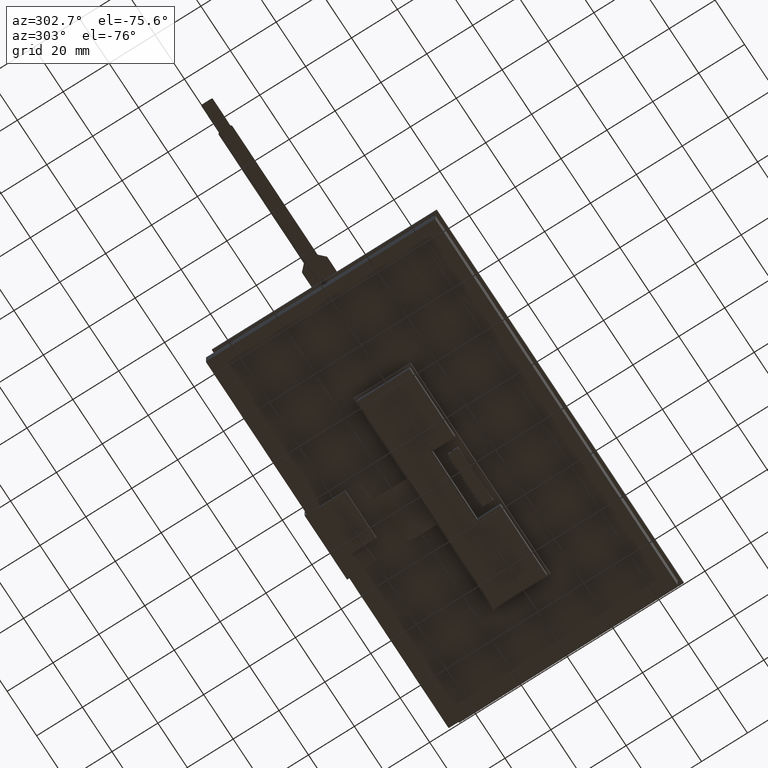
[diagram: clean part render]
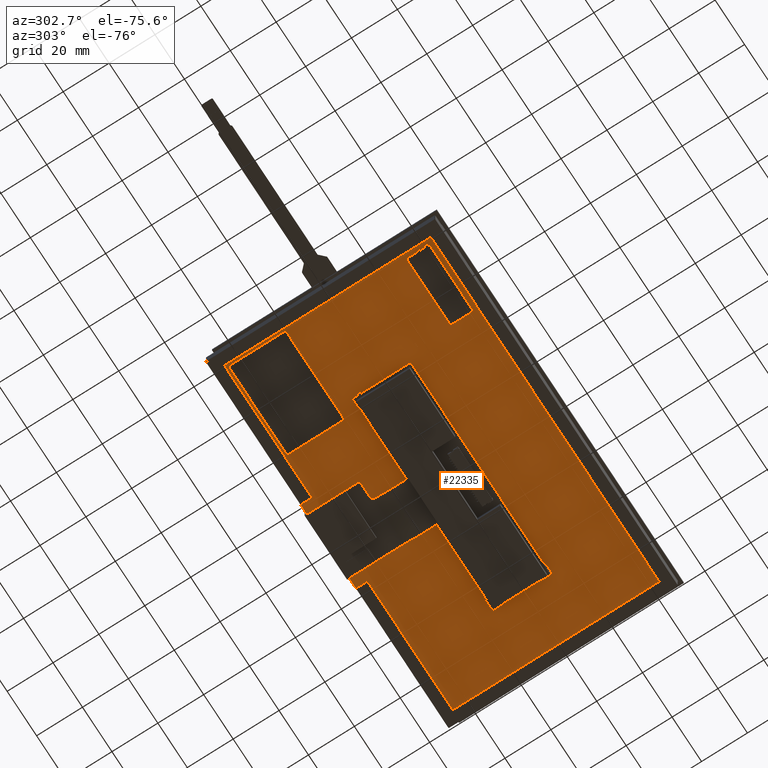
[diagram: same view with one face highlighted and labeled with its STEP entity id]
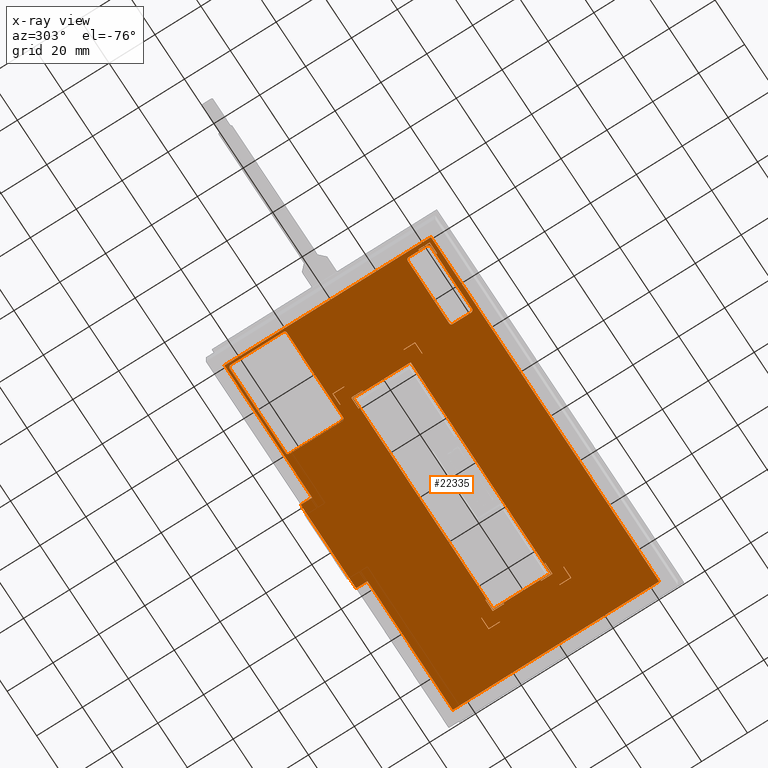
[diagram: x-ray of the same camera — body ghosted, the highlighted face saturated]
A machine part, auxiliary view. The second image highlights one B-rep face of the part: STEP entity #22335.
The next image is the same camera in x-ray: the body ghosted, the highlighted face saturated — about 0% of this face is hidden behind the body in this view.
In plain terms, the highlighted planar face has unit normal (0, -0, -1).
Its self-contained STEP definition (entity closure, byte-faithful):
#115=CIRCLE('',#22459,1.);
#119=CIRCLE('',#22466,1.);
#120=CIRCLE('',#22468,1.);
#121=CIRCLE('',#22471,1.);
#144=CIRCLE('',#22568,1.);
#146=CIRCLE('',#22572,1.00000000000003);
#148=CIRCLE('',#22576,0.999999999999999);
#150=CIRCLE('',#22580,0.999999999999976);
#771=FACE_BOUND('',#3068,.T.);
#772=FACE_BOUND('',#3069,.T.);
#773=FACE_BOUND('',#3070,.T.);
#774=FACE_BOUND('',#3071,.T.);
#775=FACE_BOUND('',#3072,.T.);
#776=FACE_BOUND('',#3073,.T.);
#777=FACE_BOUND('',#3074,.T.);
#778=FACE_BOUND('',#3075,.T.);
#779=FACE_BOUND('',#3076,.T.);
#780=FACE_BOUND('',#3077,.T.);
#781=FACE_BOUND('',#3078,.T.);
#1855=FACE_OUTER_BOUND('',#3067,.T.);
#3067=EDGE_LOOP('',(#19982,#19983,#19984,#19985,#19986,#19987,#19988,#19989));
#3068=EDGE_LOOP('',(#19990,#19991,#19992,#19993,#19994,#19995,#19996,#19997));
#3069=EDGE_LOOP('',(#19998,#19999,#20000,#20001,#20002,#20003,#20004,#20005));
#3070=EDGE_LOOP('',(#20006,#20007,#20008,#20009));
#3071=EDGE_LOOP('',(#20010,#20011,#20012,#20013,#20014,#20015));
#3072=EDGE_LOOP('',(#20016,#20017,#20018,#20019,#20020,#20021));
#3073=EDGE_LOOP('',(#20022,#20023,#20024,#20025,#20026,#20027));
#3074=EDGE_LOOP('',(#20028,#20029,#20030,#20031,#20032,#20033));
#3075=EDGE_LOOP('',(#20034,#20035,#20036,#20037,#20038,#20039));
#3076=EDGE_LOOP('',(#20040,#20041,#20042,#20043,#20044,#20045));
#3077=EDGE_LOOP('',(#20046,#20047,#20048,#20049,#20050,#20051));
#3078=EDGE_LOOP('',(#20052,#20053,#20054,#20055,#20056,#20057));
#3231=LINE('',#30161,#5975);
#3237=LINE('',#30176,#5981);
#3239=LINE('',#30182,#5983);
#3240=LINE('',#30184,#5984);
#3420=LINE('',#30600,#6164);
#3424=LINE('',#30612,#6168);
#3428=LINE('',#30624,#6172);
#3432=LINE('',#30635,#6176);
#5700=LINE('',#36011,#8444);
#5703=LINE('',#36016,#8447);
#5705=LINE('',#36020,#8449);
#5707=LINE('',#36023,#8451);
#5708=LINE('',#36027,#8452);
#5712=LINE('',#36035,#8456);
#5715=LINE('',#36041,#8459);
#5718=LINE('',#36047,#8462);
#5721=LINE('',#36053,#8465);
#5724=LINE('',#36059,#8468);
#5727=LINE('',#36065,#8471);
#5734=LINE('',#36083,#8478);
#5735=LINE('',#36086,#8479);
#5736=LINE('',#36088,#8480);
#5737=LINE('',#36090,#8481);
#5738=LINE('',#36092,#8482);
#5739=LINE('',#36094,#8483);
#5740=LINE('',#36095,#8484);
#5741=LINE('',#36098,#8485);
#5742=LINE('',#36100,#8486);
#5743=LINE('',#36102,#8487);
#5744=LINE('',#36104,#8488);
#5745=LINE('',#36106,#8489);
#5746=LINE('',#36107,#8490);
#5747=LINE('',#36110,#8491);
#5748=LINE('',#36112,#8492);
#5749=LINE('',#36114,#8493);
#5750=LINE('',#36116,#8494);
#5751=LINE('',#36118,#8495);
#5752=LINE('',#36119,#8496);
#5753=LINE('',#36122,#8497);
#5754=LINE('',#36124,#8498);
#5755=LINE('',#36126,#8499);
#5756=LINE('',#36128,#8500);
#5757=LINE('',#36130,#8501);
#5758=LINE('',#36131,#8502);
#5759=LINE('',#36134,#8503);
#5760=LINE('',#36136,#8504);
#5761=LINE('',#36138,#8505);
#5762=LINE('',#36140,#8506);
#5763=LINE('',#36142,#8507);
#5764=LINE('',#36143,#8508);
#5765=LINE('',#36146,#8509);
#5766=LINE('',#36148,#8510);
#5767=LINE('',#36150,#8511);
#5768=LINE('',#36152,#8512);
#5769=LINE('',#36154,#8513);
#5770=LINE('',#36155,#8514);
#5771=LINE('',#36158,#8515);
#5772=LINE('',#36160,#8516);
#5773=LINE('',#36162,#8517);
#5774=LINE('',#36164,#8518);
#5775=LINE('',#36166,#8519);
#5776=LINE('',#36167,#8520);
#5777=LINE('',#36170,#8521);
#5778=LINE('',#36172,#8522);
#5779=LINE('',#36174,#8523);
#5780=LINE('',#36176,#8524);
#5781=LINE('',#36178,#8525);
#5782=LINE('',#36179,#8526);
#5975=VECTOR('',#24194,10.);
#5981=VECTOR('',#24210,10.);
#5983=VECTOR('',#24218,10.);
#5984=VECTOR('',#24221,10.);
#6164=VECTOR('',#24595,10.);
#6168=VECTOR('',#24607,10.);
#6172=VECTOR('',#24619,10.);
#6176=VECTOR('',#24631,10.);
#8444=VECTOR('',#29615,10.);
#8447=VECTOR('',#29620,10.);
#8449=VECTOR('',#29624,10.);
#8451=VECTOR('',#29628,10.);
#8452=VECTOR('',#29631,10.);
#8456=VECTOR('',#29637,10.);
#8459=VECTOR('',#29642,10.);
#8462=VECTOR('',#29647,10.);
#8465=VECTOR('',#29652,10.);
#8468=VECTOR('',#29657,10.);
#8471=VECTOR('',#29662,10.);
#8478=VECTOR('',#29679,1000.);
#8479=VECTOR('',#29680,1000.);
#8480=VECTOR('',#29681,1000.);
#8481=VECTOR('',#29682,1000.);
#8482=VECTOR('',#29683,1000.);
#8483=VECTOR('',#29684,1000.);
#8484=VECTOR('',#29685,1000.);
#8485=VECTOR('',#29686,1000.);
#8486=VECTOR('',#29687,1000.);
#8487=VECTOR('',#29688,1000.);
#8488=VECTOR('',#29689,1000.);
#8489=VECTOR('',#29690,1000.);
#8490=VECTOR('',#29691,1000.);
#8491=VECTOR('',#29692,1000.);
#8492=VECTOR('',#29693,1000.);
#8493=VECTOR('',#29694,1000.);
#8494=VECTOR('',#29695,1000.);
#8495=VECTOR('',#29696,1000.);
#8496=VECTOR('',#29697,1000.);
#8497=VECTOR('',#29698,1000.);
#8498=VECTOR('',#29699,1000.);
#8499=VECTOR('',#29700,1000.);
#8500=VECTOR('',#29701,1000.);
#8501=VECTOR('',#29702,1000.);
#8502=VECTOR('',#29703,1000.);
#8503=VECTOR('',#29704,1000.);
#8504=VECTOR('',#29705,1000.);
#8505=VECTOR('',#29706,1000.);
#8506=VECTOR('',#29707,1000.);
#8507=VECTOR('',#29708,1000.);
#8508=VECTOR('',#29709,1000.);
#8509=VECTOR('',#29710,1000.);
#8510=VECTOR('',#29711,1000.);
#8511=VECTOR('',#29712,1000.);
#8512=VECTOR('',#29713,1000.);
#8513=VECTOR('',#29714,1000.);
#8514=VECTOR('',#29715,1000.);
#8515=VECTOR('',#29716,1000.);
#8516=VECTOR('',#29717,1000.);
#8517=VECTOR('',#29718,1000.);
#8518=VECTOR('',#29719,1000.);
#8519=VECTOR('',#29720,1000.);
#8520=VECTOR('',#29721,1000.);
#8521=VECTOR('',#29722,1000.);
#8522=VECTOR('',#29723,1000.);
#8523=VECTOR('',#29724,1000.);
#8524=VECTOR('',#29725,1000.);
#8525=VECTOR('',#29726,1000.);
#8526=VECTOR('',#29727,1000.);
#8689=VERTEX_POINT('',#30140);
#8690=VERTEX_POINT('',#30142);
#8697=VERTEX_POINT('',#30160);
#8698=VERTEX_POINT('',#30164);
#8699=VERTEX_POINT('',#30168);
#8700=VERTEX_POINT('',#30170);
#8701=VERTEX_POINT('',#30174);
#8702=VERTEX_POINT('',#30178);
#8837=VERTEX_POINT('',#30590);
#8838=VERTEX_POINT('',#30591);
#8841=VERTEX_POINT('',#30599);
#8843=VERTEX_POINT('',#30605);
#8845=VERTEX_POINT('',#30611);
#8847=VERTEX_POINT('',#30617);
#8849=VERTEX_POINT('',#30623);
#8851=VERTEX_POINT('',#30629);
#10601=VERTEX_POINT('',#36009);
#10602=VERTEX_POINT('',#36010);
#10603=VERTEX_POINT('',#36015);
#10604=VERTEX_POINT('',#36019);
#10605=VERTEX_POINT('',#36025);
#10606=VERTEX_POINT('',#36026);
#10609=VERTEX_POINT('',#36034);
#10611=VERTEX_POINT('',#36040);
#10613=VERTEX_POINT('',#36046);
#10615=VERTEX_POINT('',#36052);
#10617=VERTEX_POINT('',#36058);
#10619=VERTEX_POINT('',#36064);
#10626=VERTEX_POINT('',#36084);
#10627=VERTEX_POINT('',#36085);
#10628=VERTEX_POINT('',#36087);
#10629=VERTEX_POINT('',#36089);
#10630=VERTEX_POINT('',#36091);
#10631=VERTEX_POINT('',#36093);
#10632=VERTEX_POINT('',#36096);
#10633=VERTEX_POINT('',#36097);
#10634=VERTEX_POINT('',#36099);
#10635=VERTEX_POINT('',#36101);
#10636=VERTEX_POINT('',#36103);
#10637=VERTEX_POINT('',#36105);
#10638=VERTEX_POINT('',#36108);
#10639=VERTEX_POINT('',#36109);
#10640=VERTEX_POINT('',#36111);
#10641=VERTEX_POINT('',#36113);
#10642=VERTEX_POINT('',#36115);
#10643=VERTEX_POINT('',#36117);
#10644=VERTEX_POINT('',#36120);
#10645=VERTEX_POINT('',#36121);
#10646=VERTEX_POINT('',#36123);
#10647=VERTEX_POINT('',#36125);
#10648=VERTEX_POINT('',#36127);
#10649=VERTEX_POINT('',#36129);
#10650=VERTEX_POINT('',#36132);
#10651=VERTEX_POINT('',#36133);
#10652=VERTEX_POINT('',#36135);
#10653=VERTEX_POINT('',#36137);
#10654=VERTEX_POINT('',#36139);
#10655=VERTEX_POINT('',#36141);
#10656=VERTEX_POINT('',#36144);
#10657=VERTEX_POINT('',#36145);
#10658=VERTEX_POINT('',#36147);
#10659=VERTEX_POINT('',#36149);
#10660=VERTEX_POINT('',#36151);
#10661=VERTEX_POINT('',#36153);
#10662=VERTEX_POINT('',#36156);
#10663=VERTEX_POINT('',#36157);
#10664=VERTEX_POINT('',#36159);
#10665=VERTEX_POINT('',#36161);
#10666=VERTEX_POINT('',#36163);
#10667=VERTEX_POINT('',#36165);
#10668=VERTEX_POINT('',#36168);
#10669=VERTEX_POINT('',#36169);
#10670=VERTEX_POINT('',#36171);
#10671=VERTEX_POINT('',#36173);
#10672=VERTEX_POINT('',#36175);
#10673=VERTEX_POINT('',#36177);
#10811=EDGE_CURVE('',#8690,#8689,#115,.T.);
#10820=EDGE_CURVE('',#8697,#8690,#3231,.T.);
#10822=EDGE_CURVE('',#8698,#8697,#119,.T.);
#10825=EDGE_CURVE('',#8700,#8699,#120,.T.);
#10828=EDGE_CURVE('',#8699,#8701,#3237,.T.);
#10830=EDGE_CURVE('',#8701,#8702,#121,.T.);
#10831=EDGE_CURVE('',#8702,#8698,#3239,.T.);
#10832=EDGE_CURVE('',#8689,#8700,#3240,.T.);
#11032=EDGE_CURVE('',#8837,#8838,#144,.T.);
#11036=EDGE_CURVE('',#8841,#8837,#3420,.T.);
#11039=EDGE_CURVE('',#8843,#8841,#146,.T.);
#11042=EDGE_CURVE('',#8845,#8843,#3424,.T.);
#11045=EDGE_CURVE('',#8847,#8845,#148,.T.);
#11048=EDGE_CURVE('',#8849,#8847,#3428,.T.);
#11051=EDGE_CURVE('',#8851,#8849,#150,.T.);
#11054=EDGE_CURVE('',#8838,#8851,#3432,.T.);
#13740=EDGE_CURVE('',#10601,#10602,#5700,.T.);
#13743=EDGE_CURVE('',#10603,#10601,#5703,.T.);
#13745=EDGE_CURVE('',#10604,#10603,#5705,.T.);
#13747=EDGE_CURVE('',#10602,#10604,#5707,.T.);
#13748=EDGE_CURVE('',#10605,#10606,#5708,.T.);
#13752=EDGE_CURVE('',#10606,#10609,#5712,.T.);
#13755=EDGE_CURVE('',#10609,#10611,#5715,.T.);
#13758=EDGE_CURVE('',#10611,#10613,#5718,.T.);
#13761=EDGE_CURVE('',#10613,#10615,#5721,.T.);
#13764=EDGE_CURVE('',#10615,#10617,#5724,.T.);
#13767=EDGE_CURVE('',#10617,#10619,#5727,.T.);
#13777=EDGE_CURVE('',#10605,#10619,#5734,.T.);
#13778=EDGE_CURVE('',#10626,#10627,#5735,.T.);
#13779=EDGE_CURVE('',#10628,#10626,#5736,.T.);
#13780=EDGE_CURVE('',#10629,#10628,#5737,.T.);
#13781=EDGE_CURVE('',#10630,#10629,#5738,.T.);
#13782=EDGE_CURVE('',#10631,#10630,#5739,.T.);
#13783=EDGE_CURVE('',#10627,#10631,#5740,.T.);
#13784=EDGE_CURVE('',#10632,#10633,#5741,.T.);
#13785=EDGE_CURVE('',#10634,#10632,#5742,.T.);
#13786=EDGE_CURVE('',#10635,#10634,#5743,.T.);
#13787=EDGE_CURVE('',#10636,#10635,#5744,.T.);
#13788=EDGE_CURVE('',#10637,#10636,#5745,.T.);
#13789=EDGE_CURVE('',#10633,#10637,#5746,.T.);
#13790=EDGE_CURVE('',#10638,#10639,#5747,.T.);
#13791=EDGE_CURVE('',#10640,#10638,#5748,.T.);
#13792=EDGE_CURVE('',#10641,#10640,#5749,.T.);
#13793=EDGE_CURVE('',#10642,#10641,#5750,.T.);
#13794=EDGE_CURVE('',#10643,#10642,#5751,.T.);
#13795=EDGE_CURVE('',#10639,#10643,#5752,.T.);
#13796=EDGE_CURVE('',#10644,#10645,#5753,.T.);
#13797=EDGE_CURVE('',#10646,#10644,#5754,.T.);
#13798=EDGE_CURVE('',#10647,#10646,#5755,.T.);
#13799=EDGE_CURVE('',#10648,#10647,#5756,.T.);
#13800=EDGE_CURVE('',#10649,#10648,#5757,.T.);
#13801=EDGE_CURVE('',#10645,#10649,#5758,.T.);
#13802=EDGE_CURVE('',#10650,#10651,#5759,.T.);
#13803=EDGE_CURVE('',#10652,#10650,#5760,.T.);
#13804=EDGE_CURVE('',#10653,#10652,#5761,.T.);
#13805=EDGE_CURVE('',#10654,#10653,#5762,.T.);
#13806=EDGE_CURVE('',#10655,#10654,#5763,.T.);
#13807=EDGE_CURVE('',#10651,#10655,#5764,.T.);
#13808=EDGE_CURVE('',#10656,#10657,#5765,.T.);
#13809=EDGE_CURVE('',#10658,#10656,#5766,.T.);
#13810=EDGE_CURVE('',#10659,#10658,#5767,.T.);
#13811=EDGE_CURVE('',#10660,#10659,#5768,.T.);
#13812=EDGE_CURVE('',#10661,#10660,#5769,.T.);
#13813=EDGE_CURVE('',#10657,#10661,#5770,.T.);
#13814=EDGE_CURVE('',#10662,#10663,#5771,.T.);
#13815=EDGE_CURVE('',#10664,#10662,#5772,.T.);
#13816=EDGE_CURVE('',#10665,#10664,#5773,.T.);
#13817=EDGE_CURVE('',#10666,#10665,#5774,.T.);
#13818=EDGE_CURVE('',#10667,#10666,#5775,.T.);
#13819=EDGE_CURVE('',#10663,#10667,#5776,.T.);
#13820=EDGE_CURVE('',#10668,#10669,#5777,.T.);
#13821=EDGE_CURVE('',#10670,#10668,#5778,.T.);
#13822=EDGE_CURVE('',#10671,#10670,#5779,.T.);
#13823=EDGE_CURVE('',#10672,#10671,#5780,.T.);
#13824=EDGE_CURVE('',#10673,#10672,#5781,.T.);
#13825=EDGE_CURVE('',#10669,#10673,#5782,.T.);
#19982=ORIENTED_EDGE('',*,*,#13748,.T.);
#19983=ORIENTED_EDGE('',*,*,#13752,.T.);
#19984=ORIENTED_EDGE('',*,*,#13755,.T.);
#19985=ORIENTED_EDGE('',*,*,#13758,.T.);
#19986=ORIENTED_EDGE('',*,*,#13761,.T.);
#19987=ORIENTED_EDGE('',*,*,#13764,.T.);
#19988=ORIENTED_EDGE('',*,*,#13767,.T.);
#19989=ORIENTED_EDGE('',*,*,#13777,.F.);
#19990=ORIENTED_EDGE('',*,*,#10825,.T.);
#19991=ORIENTED_EDGE('',*,*,#10828,.T.);
#19992=ORIENTED_EDGE('',*,*,#10830,.T.);
#19993=ORIENTED_EDGE('',*,*,#10831,.T.);
#19994=ORIENTED_EDGE('',*,*,#10822,.T.);
#19995=ORIENTED_EDGE('',*,*,#10820,.T.);
#19996=ORIENTED_EDGE('',*,*,#10811,.T.);
#19997=ORIENTED_EDGE('',*,*,#10832,.T.);
#19998=ORIENTED_EDGE('',*,*,#11032,.T.);
#19999=ORIENTED_EDGE('',*,*,#11054,.T.);
#20000=ORIENTED_EDGE('',*,*,#11051,.T.);
#20001=ORIENTED_EDGE('',*,*,#11048,.T.);
#20002=ORIENTED_EDGE('',*,*,#11045,.T.);
#20003=ORIENTED_EDGE('',*,*,#11042,.T.);
#20004=ORIENTED_EDGE('',*,*,#11039,.T.);
#20005=ORIENTED_EDGE('',*,*,#11036,.T.);
#20006=ORIENTED_EDGE('',*,*,#13740,.T.);
#20007=ORIENTED_EDGE('',*,*,#13747,.T.);
#20008=ORIENTED_EDGE('',*,*,#13745,.T.);
#20009=ORIENTED_EDGE('',*,*,#13743,.T.);
#20010=ORIENTED_EDGE('',*,*,#13778,.F.);
#20011=ORIENTED_EDGE('',*,*,#13779,.F.);
#20012=ORIENTED_EDGE('',*,*,#13780,.F.);
#20013=ORIENTED_EDGE('',*,*,#13781,.F.);
#20014=ORIENTED_EDGE('',*,*,#13782,.F.);
#20015=ORIENTED_EDGE('',*,*,#13783,.F.);
#20016=ORIENTED_EDGE('',*,*,#13784,.F.);
#20017=ORIENTED_EDGE('',*,*,#13785,.F.);
#20018=ORIENTED_EDGE('',*,*,#13786,.F.);
#20019=ORIENTED_EDGE('',*,*,#13787,.F.);
#20020=ORIENTED_EDGE('',*,*,#13788,.F.);
#20021=ORIENTED_EDGE('',*,*,#13789,.F.);
#20022=ORIENTED_EDGE('',*,*,#13790,.F.);
#20023=ORIENTED_EDGE('',*,*,#13791,.F.);
#20024=ORIENTED_EDGE('',*,*,#13792,.F.);
#20025=ORIENTED_EDGE('',*,*,#13793,.F.);
#20026=ORIENTED_EDGE('',*,*,#13794,.F.);
#20027=ORIENTED_EDGE('',*,*,#13795,.F.);
#20028=ORIENTED_EDGE('',*,*,#13796,.F.);
#20029=ORIENTED_EDGE('',*,*,#13797,.F.);
#20030=ORIENTED_EDGE('',*,*,#13798,.F.);
#20031=ORIENTED_EDGE('',*,*,#13799,.F.);
#20032=ORIENTED_EDGE('',*,*,#13800,.F.);
#20033=ORIENTED_EDGE('',*,*,#13801,.F.);
#20034=ORIENTED_EDGE('',*,*,#13802,.F.);
#20035=ORIENTED_EDGE('',*,*,#13803,.F.);
#20036=ORIENTED_EDGE('',*,*,#13804,.F.);
#20037=ORIENTED_EDGE('',*,*,#13805,.F.);
#20038=ORIENTED_EDGE('',*,*,#13806,.F.);
#20039=ORIENTED_EDGE('',*,*,#13807,.F.);
#20040=ORIENTED_EDGE('',*,*,#13808,.F.);
#20041=ORIENTED_EDGE('',*,*,#13809,.F.);
#20042=ORIENTED_EDGE('',*,*,#13810,.F.);
#20043=ORIENTED_EDGE('',*,*,#13811,.F.);
#20044=ORIENTED_EDGE('',*,*,#13812,.F.);
#20045=ORIENTED_EDGE('',*,*,#13813,.F.);
#20046=ORIENTED_EDGE('',*,*,#13814,.F.);
#20047=ORIENTED_EDGE('',*,*,#13815,.F.);
#20048=ORIENTED_EDGE('',*,*,#13816,.F.);
#20049=ORIENTED_EDGE('',*,*,#13817,.F.);
#20050=ORIENTED_EDGE('',*,*,#13818,.F.);
#20051=ORIENTED_EDGE('',*,*,#13819,.F.);
#20052=ORIENTED_EDGE('',*,*,#13820,.F.);
#20053=ORIENTED_EDGE('',*,*,#13821,.F.);
#20054=ORIENTED_EDGE('',*,*,#13822,.F.);
#20055=ORIENTED_EDGE('',*,*,#13823,.F.);
#20056=ORIENTED_EDGE('',*,*,#13824,.F.);
#20057=ORIENTED_EDGE('',*,*,#13825,.F.);
#21202=PLANE('',#23955);
#22335=ADVANCED_FACE('',(#1855,#771,#772,#773,#774,#775,#776,#777,#778,
#779,#780,#781),#21202,.T.);
#22459=AXIS2_PLACEMENT_3D('',#30143,#24177,#24178);
#22466=AXIS2_PLACEMENT_3D('',#30165,#24198,#24199);
#22468=AXIS2_PLACEMENT_3D('',#30171,#24204,#24205);
#22471=AXIS2_PLACEMENT_3D('',#30180,#24214,#24215);
#22568=AXIS2_PLACEMENT_3D('',#30592,#24587,#24588);
#22572=AXIS2_PLACEMENT_3D('',#30606,#24600,#24601);
#22576=AXIS2_PLACEMENT_3D('',#30618,#24612,#24613);
#22580=AXIS2_PLACEMENT_3D('',#30630,#24624,#24625);
#23955=AXIS2_PLACEMENT_3D('',#36082,#29677,#29678);
#24177=DIRECTION('center_axis',(0.,2.46519032881566E-32,1.));
#24178=DIRECTION('ref_axis',(-0.707106781186548,-0.707106781186547,1.34402472327242E-32));
#24194=DIRECTION('',(1.33226762955019E-16,-1.,2.46519032881566E-32));
#24198=DIRECTION('center_axis',(0.,2.46519032881566E-32,1.));
#24199=DIRECTION('ref_axis',(-0.707106781186547,0.707106781186548,-2.14228087356968E-32));
#24204=DIRECTION('center_axis',(0.,2.46519032881566E-32,1.));
#24205=DIRECTION('ref_axis',(0.707106781186549,-0.707106781186546,2.14228087356968E-32));
#24210=DIRECTION('',(4.88498130835069E-16,1.,-2.46519032881566E-32));
#24214=DIRECTION('center_axis',(0.,2.46519032881566E-32,1.));
#24215=DIRECTION('ref_axis',(0.707106781186548,0.707106781186547,-1.34402472327242E-32));
#24218=DIRECTION('',(-1.,0.,0.));
#24221=DIRECTION('',(1.,-2.22044604925031E-16,5.47382212626882E-48));
#24587=DIRECTION('center_axis',(0.,2.46519032881566E-32,1.));
#24588=DIRECTION('ref_axis',(-1.,9.09895546683146E-48,-2.24306570191573E-79));
#24595=DIRECTION('',(-9.09895546683146E-48,-1.,2.46519032881566E-32));
#24600=DIRECTION('center_axis',(0.,2.46519032881566E-32,1.));
#24601=DIRECTION('ref_axis',(-1.,9.09895546683146E-48,-2.24306570191573E-79));
#24607=DIRECTION('',(-1.,9.09895546683146E-48,-2.24306570191573E-79));
#24612=DIRECTION('center_axis',(0.,2.46519032881566E-32,1.));
#24613=DIRECTION('ref_axis',(-1.,9.09895546683146E-48,-2.24306570191573E-79));
#24619=DIRECTION('',(9.09895546683146E-48,1.,-2.46519032881566E-32));
#24624=DIRECTION('center_axis',(0.,2.46519032881566E-32,1.));
#24625=DIRECTION('ref_axis',(-1.,9.09895546683146E-48,-2.24306570191573E-79));
#24631=DIRECTION('',(1.,-9.09895546683146E-48,2.24306570191573E-79));
#29615=DIRECTION('',(9.09895546683146E-48,1.,-2.46519032881566E-32));
#29620=DIRECTION('',(1.,-9.09895546683146E-48,2.24306570191573E-79));
#29624=DIRECTION('',(-9.09895546683146E-48,-1.,2.46519032881566E-32));
#29628=DIRECTION('',(-1.,9.09895546683146E-48,-2.24306570191573E-79));
#29631=DIRECTION('',(-9.09895546683146E-48,-1.,2.46519032881566E-32));
#29637=DIRECTION('',(1.,-9.09895546683146E-48,2.24306570191573E-79));
#29642=DIRECTION('',(-9.09895546683146E-48,-1.,2.46519032881566E-32));
#29647=DIRECTION('',(-1.,9.09895546683146E-48,-2.24306570191573E-79));
#29652=DIRECTION('',(9.09895546683146E-48,1.,-2.46519032881566E-32));
#29657=DIRECTION('',(1.,-9.09895546683146E-48,2.24306570191573E-79));
#29662=DIRECTION('',(9.09895546683146E-48,1.,-2.46519032881566E-32));
#29677=DIRECTION('center_axis',(0.,-2.46519032881566E-32,-1.));
#29678=DIRECTION('ref_axis',(1.,-9.09895546683146E-48,2.24306570191573E-79));
#29679=DIRECTION('',(-1.,9.09895546683146E-48,-2.24306570191573E-79));
#29680=DIRECTION('',(-9.09895546683146E-48,-1.,2.46519032881566E-32));
#29681=DIRECTION('',(1.,-9.09895546683146E-48,2.24306570191573E-79));
#29682=DIRECTION('',(9.09895546683146E-48,1.,-2.46519032881566E-32));
#29683=DIRECTION('',(-1.,9.09895546683146E-48,-2.24306570191573E-79));
#29684=DIRECTION('',(9.09895546683146E-48,1.,-2.46519032881566E-32));
#29685=DIRECTION('',(-1.,9.09895546683146E-48,-2.24306570191573E-79));
#29686=DIRECTION('',(-1.,9.09895546683146E-48,-2.24306570191573E-79));
#29687=DIRECTION('',(-9.09895546683146E-48,-1.,2.46519032881566E-32));
#29688=DIRECTION('',(1.,-9.09895546683146E-48,2.24306570191573E-79));
#29689=DIRECTION('',(9.09895546683146E-48,1.,-2.46519032881566E-32));
#29690=DIRECTION('',(-1.,9.09895546683146E-48,-2.24306570191573E-79));
#29691=DIRECTION('',(-9.09895546683146E-48,-1.,2.46519032881566E-32));
#29692=DIRECTION('',(-1.,9.09895546683146E-48,-2.24306570191573E-79));
#29693=DIRECTION('',(-9.09895546683146E-48,-1.,2.46519032881566E-32));
#29694=DIRECTION('',(1.,-9.09895546683146E-48,2.24306570191573E-79));
#29695=DIRECTION('',(9.09895546683146E-48,1.,-2.46519032881566E-32));
#29696=DIRECTION('',(1.,-9.09895546683146E-48,2.24306570191573E-79));
#29697=DIRECTION('',(9.09895546683146E-48,1.,-2.46519032881566E-32));
#29698=DIRECTION('',(9.09895546683146E-48,1.,-2.46519032881566E-32));
#29699=DIRECTION('',(-1.,9.09895546683146E-48,-2.24306570191573E-79));
#29700=DIRECTION('',(-9.09895546683146E-48,-1.,2.46519032881566E-32));
#29701=DIRECTION('',(1.,-9.09895546683146E-48,2.24306570191573E-79));
#29702=DIRECTION('',(-9.09895546683146E-48,-1.,2.46519032881566E-32));
#29703=DIRECTION('',(1.,-9.09895546683146E-48,2.24306570191573E-79));
#29704=DIRECTION('',(-9.09895546683146E-48,-1.,2.46519032881566E-32));
#29705=DIRECTION('',(1.,-9.09895546683146E-48,2.24306570191573E-79));
#29706=DIRECTION('',(9.09895546683146E-48,1.,-2.46519032881566E-32));
#29707=DIRECTION('',(-1.,9.09895546683146E-48,-2.24306570191573E-79));
#29708=DIRECTION('',(-9.09895546683146E-48,-1.,2.46519032881566E-32));
#29709=DIRECTION('',(1.,-9.09895546683146E-48,2.24306570191573E-79));
#29710=DIRECTION('',(-9.09895546683146E-48,-1.,2.46519032881566E-32));
#29711=DIRECTION('',(-1.,2.89120579329468E-15,-7.12737256024586E-47));
#29712=DIRECTION('',(-9.09895546683146E-48,-1.,2.46519032881566E-32));
#29713=DIRECTION('',(1.,-9.09895546683146E-48,2.24306570191573E-79));
#29714=DIRECTION('',(2.77555756156289E-15,1.,-2.46519032881566E-32));
#29715=DIRECTION('',(-1.,9.09895546683146E-48,-2.24306570191573E-79));
#29716=DIRECTION('',(9.09895546683146E-48,1.,-2.46519032881566E-32));
#29717=DIRECTION('',(-1.,9.09895546683146E-48,-2.24306570191573E-79));
#29718=DIRECTION('',(1.38777878078145E-15,-1.,2.46519032881566E-32));
#29719=DIRECTION('',(1.,-2.77555756156289E-15,6.84227765783603E-47));
#29720=DIRECTION('',(9.09895546683146E-48,1.,-2.46519032881566E-32));
#29721=DIRECTION('',(-1.,9.09895546683146E-48,-2.24306570191573E-79));
#29722=DIRECTION('',(9.09895546683146E-48,1.,-2.46519032881566E-32));
#29723=DIRECTION('',(-1.,-2.77555756156289E-15,6.84227765783603E-47));
#29724=DIRECTION('',(-1.38777878078145E-15,-1.,2.46519032881566E-32));
#29725=DIRECTION('',(1.,-9.09895546683146E-48,2.24306570191573E-79));
#29726=DIRECTION('',(9.09895546683146E-48,1.,-2.46519032881566E-32));
#29727=DIRECTION('',(1.,-9.09895546683146E-48,2.24306570191573E-79));
#30140=CARTESIAN_POINT('',(-77.0149999999792,21.3600000000001,-8.02500000000003));
#30142=CARTESIAN_POINT('',(-78.0149999999792,22.3600000000001,-8.02500000000003));
#30143=CARTESIAN_POINT('Origin',(-77.0149999999792,22.3600000000001,-8.02500000000003));
#30160=CARTESIAN_POINT('',(-78.0149999999792,45.3600000000001,-8.02500000000003));
#30161=CARTESIAN_POINT('',(-78.0149999999792,-0.474999999999958,-8.02500000000003));
#30164=CARTESIAN_POINT('',(-77.0149999999792,46.3600000000001,-8.02500000000003));
#30165=CARTESIAN_POINT('Origin',(-77.0149999999792,45.3600000000001,-8.02500000000003));
#30168=CARTESIAN_POINT('',(-38.0149999999792,22.3600000000001,-8.02500000000003));
#30170=CARTESIAN_POINT('',(-39.0149999999792,21.3600000000001,-8.02500000000003));
#30171=CARTESIAN_POINT('Origin',(-39.0149999999792,22.3600000000001,-8.02500000000003));
#30174=CARTESIAN_POINT('',(-38.0149999999792,45.3600000000001,-8.02500000000003));
#30176=CARTESIAN_POINT('',(-38.0149999999792,-6.72499999999997,-8.02500000000003));
#30178=CARTESIAN_POINT('',(-39.0149999999792,46.3600000000001,-8.02500000000003));
#30180=CARTESIAN_POINT('Origin',(-39.0149999999792,45.3600000000001,-8.02500000000003));
#30182=CARTESIAN_POINT('',(-70.8499999999896,46.3600000000001,-8.02500000000003));
#30184=CARTESIAN_POINT('',(-80.8499999999896,21.3600000000001,-8.02500000000003));
#30590=CARTESIAN_POINT('',(-77.015,-39.64,-8.02500000000003));
#30591=CARTESIAN_POINT('',(-76.015,-40.64,-8.02500000000003));
#30592=CARTESIAN_POINT('Origin',(-76.015,-39.64,-8.02500000000003));
#30599=CARTESIAN_POINT('',(-77.015,-31.64,-8.02500000000003));
#30600=CARTESIAN_POINT('',(-77.015,-43.475,-8.02500000000003));
#30605=CARTESIAN_POINT('',(-76.015,-30.64,-8.02500000000003));
#30606=CARTESIAN_POINT('Origin',(-76.015,-31.64,-8.02500000000003));
#30611=CARTESIAN_POINT('',(-48.015,-30.64,-8.02500000000003));
#30612=CARTESIAN_POINT('',(-79.85,-30.64,-8.02500000000003));
#30617=CARTESIAN_POINT('',(-47.015,-31.64,-8.02500000000003));
#30618=CARTESIAN_POINT('Origin',(-48.015,-31.64,-8.02500000000003));
#30623=CARTESIAN_POINT('',(-47.015,-39.64,-8.02500000000003));
#30624=CARTESIAN_POINT('',(-47.015,-39.475,-8.02500000000003));
#30629=CARTESIAN_POINT('',(-48.015,-40.64,-8.02500000000003));
#30630=CARTESIAN_POINT('Origin',(-48.015,-39.64,-8.02500000000003));
#30635=CARTESIAN_POINT('',(-65.85,-40.64,-8.02500000000003));
#36009=CARTESIAN_POINT('',(51.875,-10.73,-8.02500000000003));
#36010=CARTESIAN_POINT('',(51.875,14.27,-8.02500000000003));
#36011=CARTESIAN_POINT('',(51.875,-16.52,-8.02500000000003));
#36015=CARTESIAN_POINT('',(-43.125,-10.73,-8.02500000000003));
#36016=CARTESIAN_POINT('',(-15.905,-10.73,-8.02500000000003));
#36019=CARTESIAN_POINT('',(-43.125,14.27,-8.02500000000003));
#36020=CARTESIAN_POINT('',(-43.125,-16.52,-8.02500000000003));
#36023=CARTESIAN_POINT('',(-15.905,14.27,-8.02500000000003));
#36025=CARTESIAN_POINT('',(18.06,52.36,-8.02500000000003));
#36026=CARTESIAN_POINT('',(18.06,47.36,-8.02500000000003));
#36027=CARTESIAN_POINT('',(18.06,0.0249999999999995,-8.02500000000003));
#36034=CARTESIAN_POINT('',(75.9850000000209,47.36,-8.02500000000003));
#36035=CARTESIAN_POINT('',(-3.84999999998954,47.36,-8.02500000000003));
#36040=CARTESIAN_POINT('',(75.9850000000209,-42.64,-8.02500000000003));
#36041=CARTESIAN_POINT('',(75.9850000000209,-44.975,-8.02500000000003));
#36046=CARTESIAN_POINT('',(-79.0149999999791,-42.64,-8.02500000000003));
#36047=CARTESIAN_POINT('',(-81.3499999999895,-42.64,-8.02500000000003));
#36052=CARTESIAN_POINT('',(-79.0149999999791,47.36,-8.02500000000003));
#36053=CARTESIAN_POINT('',(-79.0149999999791,0.0250000000000083,-8.02500000000003));
#36058=CARTESIAN_POINT('',(-19.52,47.36,-8.02500000000003));
#36059=CARTESIAN_POINT('',(-51.6025,47.36,-8.02500000000003));
#36064=CARTESIAN_POINT('',(-19.52,52.36,-8.02500000000003));
#36065=CARTESIAN_POINT('',(-19.52,2.52500000000001,-8.02500000000003));
#36082=CARTESIAN_POINT('Origin',(-83.685,-47.31,-8.02500000000003));
#36083=CARTESIAN_POINT('',(80.655,52.36,-8.02500000000003));
#36084=CARTESIAN_POINT('',(57.375,19.77,-8.02500000000003));
#36085=CARTESIAN_POINT('',(57.375,14.77,-8.02500000000003));
#36086=CARTESIAN_POINT('',(57.375,19.77,-8.02500000000003));
#36087=CARTESIAN_POINT('',(52.375,19.77,-8.02500000000003));
#36088=CARTESIAN_POINT('',(57.375,19.77,-8.02500000000003));
#36089=CARTESIAN_POINT('',(52.375,19.57,-8.02500000000003));
#36090=CARTESIAN_POINT('',(52.375,19.77,-8.02500000000003));
#36091=CARTESIAN_POINT('',(57.175,19.57,-8.02500000000003));
#36092=CARTESIAN_POINT('',(57.175,19.57,-8.02500000000003));
#36093=CARTESIAN_POINT('',(57.175,14.77,-8.02500000000003));
#36094=CARTESIAN_POINT('',(57.175,19.57,-8.02500000000003));
#36095=CARTESIAN_POINT('',(57.375,14.77,-8.02500000000003));
#36096=CARTESIAN_POINT('',(-43.625,19.57,-8.02500000000003));
#36097=CARTESIAN_POINT('',(-48.425,19.57,-8.02500000000003));
#36098=CARTESIAN_POINT('',(-48.425,19.57,-8.02500000000003));
#36099=CARTESIAN_POINT('',(-43.625,19.77,-8.02500000000003));
#36100=CARTESIAN_POINT('',(-43.625,19.77,-8.02500000000003));
#36101=CARTESIAN_POINT('',(-48.625,19.77,-8.02500000000003));
#36102=CARTESIAN_POINT('',(-48.625,19.77,-8.02500000000003));
#36103=CARTESIAN_POINT('',(-48.625,14.77,-8.02500000000003));
#36104=CARTESIAN_POINT('',(-48.625,19.77,-8.02500000000003));
#36105=CARTESIAN_POINT('',(-48.425,14.77,-8.02500000000003));
#36106=CARTESIAN_POINT('',(-48.625,14.77,-8.02500000000003));
#36107=CARTESIAN_POINT('',(-48.425,19.57,-8.02500000000003));
#36108=CARTESIAN_POINT('',(57.375,-16.23,-8.02500000000003));
#36109=CARTESIAN_POINT('',(52.375,-16.23,-8.02500000000003));
#36110=CARTESIAN_POINT('',(57.375,-16.23,-8.02500000000003));
#36111=CARTESIAN_POINT('',(57.375,-11.23,-8.02500000000003));
#36112=CARTESIAN_POINT('',(57.375,-16.23,-8.02500000000003));
#36113=CARTESIAN_POINT('',(57.175,-11.23,-8.02500000000003));
#36114=CARTESIAN_POINT('',(57.375,-11.23,-8.02500000000003));
#36115=CARTESIAN_POINT('',(57.175,-16.03,-8.02500000000003));
#36116=CARTESIAN_POINT('',(57.175,-16.03,-8.02500000000003));
#36117=CARTESIAN_POINT('',(52.375,-16.03,-8.02500000000003));
#36118=CARTESIAN_POINT('',(57.175,-16.03,-8.02500000000003));
#36119=CARTESIAN_POINT('',(52.375,-16.23,-8.02500000000003));
#36120=CARTESIAN_POINT('',(-48.625,-16.23,-8.02500000000003));
#36121=CARTESIAN_POINT('',(-48.625,-11.23,-8.02500000000003));
#36122=CARTESIAN_POINT('',(-48.625,-16.23,-8.02500000000003));
#36123=CARTESIAN_POINT('',(-43.625,-16.23,-8.02500000000003));
#36124=CARTESIAN_POINT('',(-48.625,-16.23,-8.02500000000003));
#36125=CARTESIAN_POINT('',(-43.625,-16.03,-8.02500000000003));
#36126=CARTESIAN_POINT('',(-43.625,-16.23,-8.02500000000003));
#36127=CARTESIAN_POINT('',(-48.425,-16.03,-8.02500000000003));
#36128=CARTESIAN_POINT('',(-48.425,-16.03,-8.02500000000003));
#36129=CARTESIAN_POINT('',(-48.425,-11.23,-8.02500000000003));
#36130=CARTESIAN_POINT('',(-48.425,-16.03,-8.02500000000003));
#36131=CARTESIAN_POINT('',(-48.625,-11.23,-8.02500000000003));
#36132=CARTESIAN_POINT('',(-77.315,-36.14,-8.02500000000003));
#36133=CARTESIAN_POINT('',(-77.315,-40.94,-8.02500000000003));
#36134=CARTESIAN_POINT('',(-77.315,-40.94,-8.02500000000003));
#36135=CARTESIAN_POINT('',(-77.515,-36.14,-8.02500000000003));
#36136=CARTESIAN_POINT('',(-77.515,-36.14,-8.02500000000003));
#36137=CARTESIAN_POINT('',(-77.515,-41.14,-8.02500000000003));
#36138=CARTESIAN_POINT('',(-77.515,-40.94,-8.02500000000003));
#36139=CARTESIAN_POINT('',(-72.515,-41.14,-8.02500000000003));
#36140=CARTESIAN_POINT('',(-77.315,-41.14,-8.02500000000003));
#36141=CARTESIAN_POINT('',(-72.515,-40.94,-8.02500000000003));
#36142=CARTESIAN_POINT('',(-72.515,-41.14,-8.02500000000003));
#36143=CARTESIAN_POINT('',(-77.315,-40.94,-8.02500000000003));
#36144=CARTESIAN_POINT('',(-43.425,14.57,-8.02500000000003));
#36145=CARTESIAN_POINT('',(-43.425,9.76999999999998,-8.02500000000003));
#36146=CARTESIAN_POINT('',(-43.425,14.57,-8.02500000000003));
#36147=CARTESIAN_POINT('',(-38.625,14.57,-8.02500000000003));
#36148=CARTESIAN_POINT('',(-38.625,14.57,-8.02500000000003));
#36149=CARTESIAN_POINT('',(-38.625,14.77,-8.02500000000003));
#36150=CARTESIAN_POINT('',(-38.625,14.57,-8.02500000000003));
#36151=CARTESIAN_POINT('',(-43.625,14.77,-8.02500000000003));
#36152=CARTESIAN_POINT('',(-38.625,14.77,-8.02500000000003));
#36153=CARTESIAN_POINT('',(-43.625,9.76999999999998,-8.02500000000003));
#36154=CARTESIAN_POINT('',(-43.625,14.77,-8.02500000000003));
#36155=CARTESIAN_POINT('',(-43.425,9.76999999999998,-8.02500000000003));
#36156=CARTESIAN_POINT('',(52.175,9.76999999999998,-8.02500000000003));
#36157=CARTESIAN_POINT('',(52.175,14.57,-8.02500000000003));
#36158=CARTESIAN_POINT('',(52.175,14.57,-8.02500000000003));
#36159=CARTESIAN_POINT('',(52.375,9.76999999999998,-8.02500000000003));
#36160=CARTESIAN_POINT('',(52.175,9.76999999999998,-8.02500000000003));
#36161=CARTESIAN_POINT('',(52.375,14.77,-8.02500000000003));
#36162=CARTESIAN_POINT('',(52.375,14.77,-8.02500000000003));
#36163=CARTESIAN_POINT('',(47.375,14.77,-8.02500000000003));
#36164=CARTESIAN_POINT('',(47.375,14.77,-8.02500000000003));
#36165=CARTESIAN_POINT('',(47.375,14.57,-8.02500000000003));
#36166=CARTESIAN_POINT('',(47.375,14.57,-8.02500000000003));
#36167=CARTESIAN_POINT('',(47.375,14.57,-8.02500000000003));
#36168=CARTESIAN_POINT('',(47.375,-11.23,-8.02500000000003));
#36169=CARTESIAN_POINT('',(47.375,-11.03,-8.02500000000003));
#36170=CARTESIAN_POINT('',(47.375,-11.03,-8.02500000000003));
#36171=CARTESIAN_POINT('',(52.375,-11.23,-8.02500000000003));
#36172=CARTESIAN_POINT('',(47.375,-11.23,-8.02500000000003));
#36173=CARTESIAN_POINT('',(52.375,-6.23000000000002,-8.02500000000003));
#36174=CARTESIAN_POINT('',(52.375,-11.23,-8.02500000000003));
#36175=CARTESIAN_POINT('',(52.175,-6.23000000000002,-8.02500000000003));
#36176=CARTESIAN_POINT('',(52.175,-6.23000000000002,-8.02500000000003));
#36177=CARTESIAN_POINT('',(52.175,-11.03,-8.02500000000003));
#36178=CARTESIAN_POINT('',(52.175,-11.03,-8.02500000000003));
#36179=CARTESIAN_POINT('',(47.375,-11.03,-8.02500000000003));